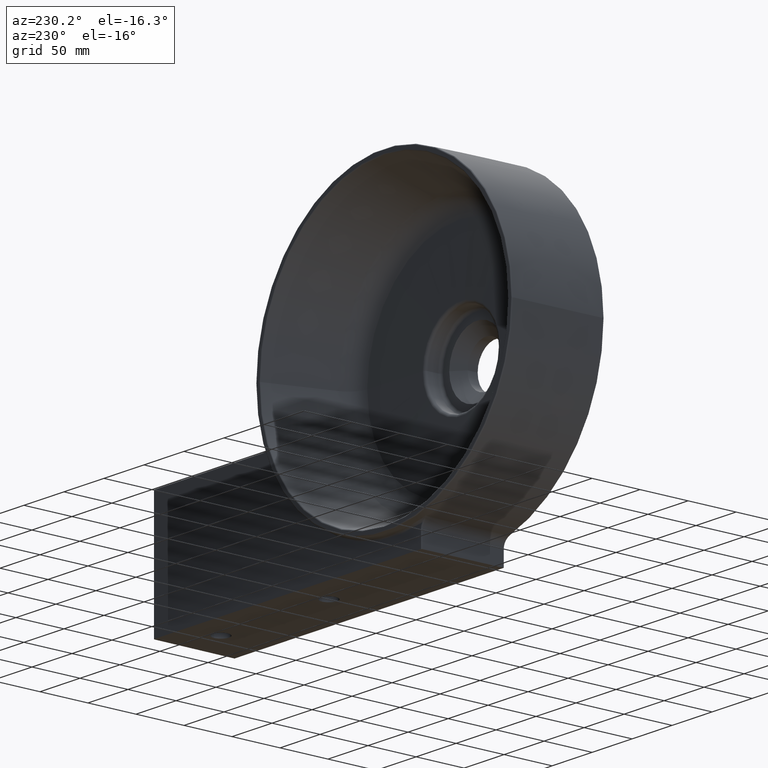
[diagram: clean part render]
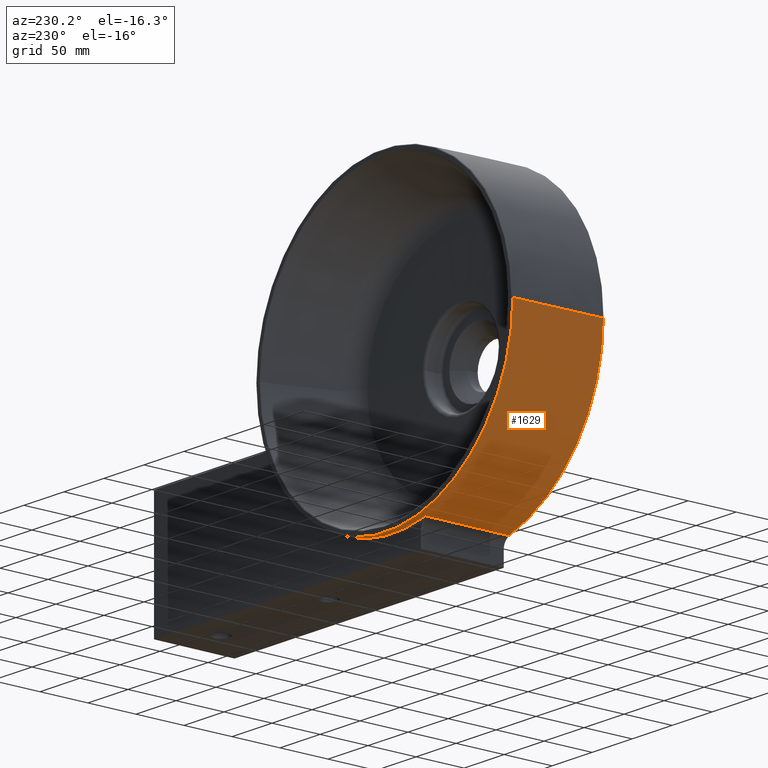
[diagram: same view with one face highlighted and labeled with its STEP entity id]
A machine part, auxiliary view. The second image highlights one B-rep face of the part: STEP entity #1629.
In plain terms, the highlighted conical surface has half-angle 0.5 deg.
Its self-contained STEP definition (entity closure, byte-faithful):
#28 = CIRCLE ( 'NONE', #2536, 160.8160002160959721 ) ;
#105 = DIRECTION ( 'NONE',  ( -1.214623636765614367E-16, 1.000000000000000000, -0.0000000000000000000 ) ) ;
#154 = CONICAL_SURFACE ( 'NONE', #1609, 159.9999999999999432, 0.008726646259963988933 ) ;
#175 = CARTESIAN_POINT ( 'NONE',  ( -42.87444206336256514, 44.46353439593922730, -154.7947858642535550 ) ) ;
#188 = EDGE_LOOP ( 'NONE', ( #1935, #3271, #3442, #3144, #641, #1959, #576, #1105 ) ) ;
#292 = CARTESIAN_POINT ( 'NONE',  ( 1.154467792894898568E-14, 22.30375424050183497, 0.0000000000000000000 ) ) ;
#297 = CARTESIAN_POINT ( 'NONE',  ( 154.8502195842235665, 64.46188105495717480, -42.01257130000640672 ) ) ;
#423 = VERTEX_POINT ( 'NONE', #2295 ) ;
#441 = CARTESIAN_POINT ( 'NONE',  ( -42.33734794164194426, 108.7819379017567201, -154.3605325915483206 ) ) ;
#479 = CARTESIAN_POINT ( 'NONE',  ( -42.68937438647490268, 66.62331348628256933, -154.6453173011169326 ) ) ;
#497 = CARTESIAN_POINT ( 'NONE',  ( 1.154467792894898568E-14, 22.30375424050183497, 0.0000000000000000000 ) ) ;
#570 = CARTESIAN_POINT ( 'NONE',  ( 155.3230344628492219, 22.30375424050185273, -41.67182370326410279 ) ) ;
#576 = ORIENTED_EDGE ( 'NONE', *, *, #756, .T. ) ;
#578 = DIRECTION ( 'NONE',  ( -1.214623636765614367E-16, 1.000000000000000000, -0.0000000000000000000 ) ) ;
#580 = DIRECTION ( 'NONE',  ( 1.000000000000000000, 8.673617379884039170E-17, 0.0000000000000000000 ) ) ;
#641 = ORIENTED_EDGE ( 'NONE', *, *, #1606, .T. ) ;
#701 = LINE ( 'NONE', #2889, #3920 ) ;
#731 = DIRECTION ( 'NONE',  ( -1.214623636765614367E-16, 1.000000000000000000, -0.0000000000000000000 ) ) ;
#756 = EDGE_CURVE ( 'NONE', #1230, #3044, #2183, .T. ) ;
#798 = CARTESIAN_POINT ( 'NONE',  ( 1.040833334997396941E-15, 108.7819379017567201, 0.0000000000000000000 ) ) ;
#889 = AXIS2_PLACEMENT_3D ( 'NONE', #3196, #105, #2305 ) ;
#894 = CARTESIAN_POINT ( 'NONE',  ( 155.0988264157921321, 42.30184420197913653, -41.83346734002684286 ) ) ;
#918 = CARTESIAN_POINT ( 'NONE',  ( -160.8160002160959721, 22.30375424050181365, 0.0000000000000000000 ) ) ;
#1079 = CARTESIAN_POINT ( 'NONE',  ( -42.44867017761611550, 95.44937373072748699, -154.4506312328651347 ) ) ;
#1105 = ORIENTED_EDGE ( 'NONE', *, *, #3112, .T. ) ;
#1141 = CARTESIAN_POINT ( 'NONE',  ( 155.2483465605298250, 28.96978473142722876, -41.72570930504375042 ) ) ;
#1230 = VERTEX_POINT ( 'NONE', #1849 ) ;
#1325 = EDGE_CURVE ( 'NONE', #423, #2070, #701, .T. ) ;
#1440 = CARTESIAN_POINT ( 'NONE',  ( -43.05953790363872713, 22.30375424050182787, -154.9440612641493544 ) ) ;
#1544 = FACE_OUTER_BOUND ( 'NONE', #188, .T. ) ;
#1606 = EDGE_CURVE ( 'NONE', #2374, #1873, #2022, .T. ) ;
#1609 = AXIS2_PLACEMENT_3D ( 'NONE', #1828, #2151, #580 ) ;
#1629 = ADVANCED_FACE ( 'NONE', ( #1544 ), #154, .T. ) ;
#1828 = CARTESIAN_POINT ( 'NONE',  ( 1.874169523763215273E-16, 115.8081175082510157, 0.0000000000000000000 ) ) ;
#1842 = CARTESIAN_POINT ( 'NONE',  ( -43.05953790363872713, 22.30375424050182787, -154.9440612641493544 ) ) ;
#1849 = CARTESIAN_POINT ( 'NONE',  ( -42.33734794164194426, 108.7819379017567201, -154.3605325915483206 ) ) ;
#1873 = VERTEX_POINT ( 'NONE', #1978 ) ;
#1935 = ORIENTED_EDGE ( 'NONE', *, *, #3812, .F. ) ;
#1957 = VECTOR ( 'NONE', #4098, 1000.000000000000227 ) ;
#1959 = ORIENTED_EDGE ( 'NONE', *, *, #2975, .T. ) ;
#1978 = CARTESIAN_POINT ( 'NONE',  ( 154.3513994773447848, 108.7819379017567343, -42.37063289665665167 ) ) ;
#2022 = B_SPLINE_CURVE_WITH_KNOTS ( 'NONE', 3,
 ( #3121, #1141, #3741, #894, #297, #3416, #2130 ),
 .UNSPECIFIED., .F., .F.,
 ( 4, 3, 4 ),
 ( 0.0000000000000000000, 0.02000000000052524346, 0.08648646519882188799 ),
 .UNSPECIFIED. ) ;
#2039 = CARTESIAN_POINT ( 'NONE',  ( -42.50433516190589245, 88.78309149889236096, -154.4956541137780164 ) ) ;
#2060 = DIRECTION ( 'NONE',  ( -1.214623636765614367E-16, 1.000000000000000000, -0.0000000000000000000 ) ) ;
#2070 = VERTEX_POINT ( 'NONE', #2812 ) ;
#2123 = LINE ( 'NONE', #2435, #1957 ) ;
#2130 = CARTESIAN_POINT ( 'NONE',  ( 154.3513994773447848, 108.7819379017567343, -42.37063289665665167 ) ) ;
#2151 = DIRECTION ( 'NONE',  ( 1.214623636765614367E-16, -1.000000000000000000, 0.0000000000000000000 ) ) ;
#2183 = B_SPLINE_CURVE_WITH_KNOTS ( 'NONE', 3,
 ( #441, #2997, #1079, #2039, #479, #175, #1440 ),
 .UNSPECIFIED., .F., .F.,
 ( 4, 3, 4 ),
 ( 2.775557561562891351E-17, 0.02000000000007151266, 0.08648316780731921116 ),
 .UNSPECIFIED. ) ;
#2240 = VERTEX_POINT ( 'NONE', #2896 ) ;
#2295 = CARTESIAN_POINT ( 'NONE',  ( 159.9999999999999432, 115.8081175082510299, 0.0000000000000000000 ) ) ;
#2305 = DIRECTION ( 'NONE',  ( -1.000000000000000000, -8.673617379884039170E-17, 0.0000000000000000000 ) ) ;
#2374 = VERTEX_POINT ( 'NONE', #570 ) ;
#2427 = VERTEX_POINT ( 'NONE', #918 ) ;
#2435 = CARTESIAN_POINT ( 'NONE',  ( -159.9999999999999432, 115.8081175082510015, 1.959434878635764579E-14 ) ) ;
#2536 = AXIS2_PLACEMENT_3D ( 'NONE', #292, #578, #3692 ) ;
#2812 = CARTESIAN_POINT ( 'NONE',  ( 160.8160002160959721, 22.30375424050185629, 1.969427999163220075E-14 ) ) ;
#2889 = CARTESIAN_POINT ( 'NONE',  ( 159.9999999999999432, 115.8081175082510299, 0.0000000000000000000 ) ) ;
#2896 = CARTESIAN_POINT ( 'NONE',  ( -159.9999999999999432, 115.8081175082510015, 1.964431438899491854E-14 ) ) ;
#2975 = EDGE_CURVE ( 'NONE', #1873, #1230, #3933, .T. ) ;
#2997 = CARTESIAN_POINT ( 'NONE',  ( -42.39300776821617234, 102.1156558651314583, -154.4055907388219282 ) ) ;
#3025 = EDGE_CURVE ( 'NONE', #2070, #2374, #28, .T. ) ;
#3044 = VERTEX_POINT ( 'NONE', #1842 ) ;
#3112 = EDGE_CURVE ( 'NONE', #3044, #2427, #3130, .T. ) ;
#3121 = CARTESIAN_POINT ( 'NONE',  ( 155.3230344628492219, 22.30375424050185273, -41.67182370326410279 ) ) ;
#3130 = CIRCLE ( 'NONE', #3395, 160.8160002160959721 ) ;
#3144 = ORIENTED_EDGE ( 'NONE', *, *, #3025, .T. ) ;
#3196 = CARTESIAN_POINT ( 'NONE',  ( 1.874169523763215273E-16, 115.8081175082510157, 0.0000000000000000000 ) ) ;
#3271 = ORIENTED_EDGE ( 'NONE', *, *, #3651, .F. ) ;
#3324 = DIRECTION ( 'NONE',  ( -1.000000000000000000, -8.670294676917139636E-17, 0.0000000000000000000 ) ) ;
#3395 = AXIS2_PLACEMENT_3D ( 'NONE', #497, #731, #3550 ) ;
#3416 = CARTESIAN_POINT ( 'NONE',  ( 154.6010796487886978, 86.62191232670566876, -42.19162665207489482 ) ) ;
#3442 = ORIENTED_EDGE ( 'NONE', *, *, #1325, .T. ) ;
#3495 = DIRECTION ( 'NONE',  ( 0.008726535498366397303, -0.9999619230641713097, 0.0000000000000000000 ) ) ;
#3550 = DIRECTION ( 'NONE',  ( -1.000000000000000000, -1.294440956356913246E-16, 0.0000000000000000000 ) ) ;
#3651 = EDGE_CURVE ( 'NONE', #423, #2240, #3672, .T. ) ;
#3672 = CIRCLE ( 'NONE', #889, 159.9999999999999432 ) ;
#3692 = DIRECTION ( 'NONE',  ( -1.000000000000000000, -1.294440956356913246E-16, 0.0000000000000000000 ) ) ;
#3741 = CARTESIAN_POINT ( 'NONE',  ( 155.1736106086050313, 35.63581471961552438, -41.77959052179080146 ) ) ;
#3812 = EDGE_CURVE ( 'NONE', #2240, #2427, #2123, .T. ) ;
#3920 = VECTOR ( 'NONE', #3495, 1000.000000000000227 ) ;
#3933 = CIRCLE ( 'NONE', #4003, 160.0613165404999165 ) ;
#4003 = AXIS2_PLACEMENT_3D ( 'NONE', #798, #2060, #3324 ) ;
#4098 = DIRECTION ( 'NONE',  ( -0.008726535498366154442, -0.9999619230641713097, 1.068692376572001036E-18 ) ) ;